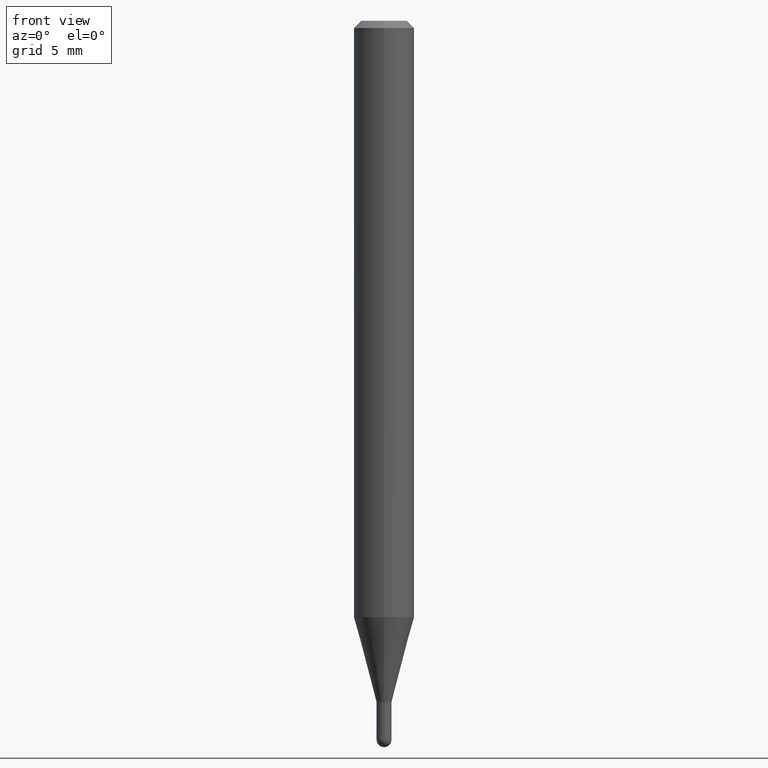
[diagram: clean part render]
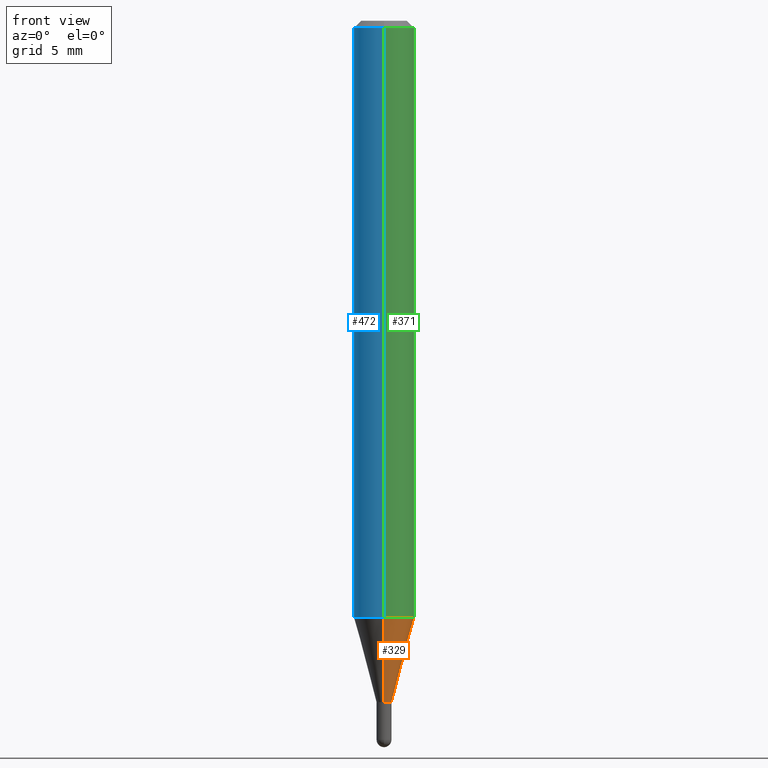
[diagram: same view with three faces highlighted in distinct colors, each labeled with its STEP entity id]
A machine part, front view with three faces highlighted in distinct colors.
Their STEP definitions:

[orange] entity #329 — the highlighted conical surface has half-angle 15 deg.
#16 = CIRCLE ( 'NONE', #436, 0.06250000000000000000 ) ;
#37 = LINE ( 'NONE', #120, #142 ) ;
#38 = CARTESIAN_POINT ( 'NONE',  ( 4.440892098500924943E-16, 0.06249999999999567707, -1.231593612044269426 ) ) ;
#68 = EDGE_CURVE ( 'NONE', #480, #490, #37, .T. ) ;
#94 = EDGE_CURVE ( 'NONE', #207, #268, #168, .T. ) ;
#120 = CARTESIAN_POINT ( 'NONE',  ( -1.082359215041040950E-16, -0.01550000000000511038, -1.407000000000000028 ) ) ;
#142 = VECTOR ( 'NONE', #465, 39.37007874015748854 ) ;
#168 = LINE ( 'NONE', #324, #392 ) ;
#175 = DIRECTION ( 'NONE',  ( -6.982962677686265922E-15, -1.000000000000000000, 4.370956789862821150E-15 ) ) ;
#180 = EDGE_CURVE ( 'NONE', #480, #207, #366, .T. ) ;
#207 = VERTEX_POINT ( 'NONE', #413 ) ;
#210 = DIRECTION ( 'NONE',  ( -2.445473868561533157E-29, 3.491474089232013110E-15, 1.000000000000000000 ) ) ;
#219 = DIRECTION ( 'NONE',  ( -2.445473868561533157E-29, 3.491474089232013110E-15, 1.000000000000000000 ) ) ;
#234 = CARTESIAN_POINT ( 'NONE',  ( -4.364351673553616434E-16, -0.06250000000000431599, -1.231593612044268982 ) ) ;
#247 = AXIS2_PLACEMENT_3D ( 'NONE', #253, #219, #451 ) ;
#251 = CARTESIAN_POINT ( 'NONE',  ( 3.011829994941570979E-29, -4.300077184916230038E-15, -1.231593612044269204 ) ) ;
#253 = CARTESIAN_POINT ( 'NONE',  ( 3.440781733066077319E-29, -4.912504043549441891E-15, -1.407000000000000028 ) ) ;
#268 = VERTEX_POINT ( 'NONE', #38 ) ;
#291 = EDGE_CURVE ( 'NONE', #490, #268, #16, .T. ) ;
#297 = DIRECTION ( 'NONE',  ( -2.445473868561533157E-29, 3.491474089232013110E-15, 1.000000000000000000 ) ) ;
#299 = ORIENTED_EDGE ( 'NONE', *, *, #68, .F. ) ;
#324 = CARTESIAN_POINT ( 'NONE',  ( 1.101341240428513349E-16, 0.01549999999999528491, -1.407000000000000028 ) ) ;
#329 = ADVANCED_FACE ( 'NONE', ( #335 ), #468, .T. ) ;
#333 = AXIS2_PLACEMENT_3D ( 'NONE', #473, #297, #475 ) ;
#335 = FACE_OUTER_BOUND ( 'NONE', #403, .T. ) ;
#346 = ORIENTED_EDGE ( 'NONE', *, *, #180, .T. ) ;
#366 = CIRCLE ( 'NONE', #247, 0.01550000000000019765 ) ;
#392 = VECTOR ( 'NONE', #463, 39.37007874015748143 ) ;
#396 = CARTESIAN_POINT ( 'NONE',  ( -1.082359215041040950E-16, -0.01550000000000511038, -1.407000000000000028 ) ) ;
#403 = EDGE_LOOP ( 'NONE', ( #346, #411, #482, #299 ) ) ;
#411 = ORIENTED_EDGE ( 'NONE', *, *, #94, .T. ) ;
#413 = CARTESIAN_POINT ( 'NONE',  ( 2.771116669464721549E-16, 0.01549999999999528491, -1.407000000000000028 ) ) ;
#436 = AXIS2_PLACEMENT_3D ( 'NONE', #251, #210, #175 ) ;
#451 = DIRECTION ( 'NONE',  ( -6.982962677686266711E-15, -1.000000000000000000, 0.000000000000000000 ) ) ;
#463 = DIRECTION ( 'NONE',  ( 1.839019923739649619E-15, 0.2588190451025318972, 0.9659258262890653146 ) ) ;
#465 = DIRECTION ( 'NONE',  ( -1.807323732225378654E-15, -0.2588190451025251249, 0.9659258262890670910 ) ) ;
#468 = CONICAL_SURFACE ( 'NONE', #333, 0.01550000000000019765, 0.2617993877991574569 ) ;
#473 = CARTESIAN_POINT ( 'NONE',  ( 3.440781733066077319E-29, -4.912504043549441891E-15, -1.407000000000000028 ) ) ;
#475 = DIRECTION ( 'NONE',  ( -6.982962677686266711E-15, -1.000000000000000000, 0.000000000000000000 ) ) ;
#480 = VERTEX_POINT ( 'NONE', #396 ) ;
#482 = ORIENTED_EDGE ( 'NONE', *, *, #291, .F. ) ;
#490 = VERTEX_POINT ( 'NONE', #234 ) ;

[blue] entity #472 — the highlighted cylindrical surface (edge-blend (fillet) strip) has radius 1.5875 mm, axis along (-0, 0, 1).
#15 = EDGE_CURVE ( 'NONE', #281, #214, #443, .T. ) ;
#24 = DIRECTION ( 'NONE',  ( -6.982962677686265922E-15, -1.000000000000000000, 3.491474089232012716E-15 ) ) ;
#38 = CARTESIAN_POINT ( 'NONE',  ( 4.440892098500924943E-16, 0.06249999999999567707, -1.231593612044269426 ) ) ;
#69 = FACE_OUTER_BOUND ( 'NONE', #276, .T. ) ;
#73 = DIRECTION ( 'NONE',  ( -2.445473868561533157E-29, 3.491474089232013110E-15, 1.000000000000000000 ) ) ;
#79 = VECTOR ( 'NONE', #501, 39.37007874015748143 ) ;
#85 = ORIENTED_EDGE ( 'NONE', *, *, #389, .F. ) ;
#89 = CARTESIAN_POINT ( 'NONE',  ( 4.440892098500928887E-16, 0.06249999999999995143, -0.01500000000000028394 ) ) ;
#99 = AXIS2_PLACEMENT_3D ( 'NONE', #326, #123, #160 ) ;
#123 = DIRECTION ( 'NONE',  ( -2.445473868561533157E-29, 3.491474089232013110E-15, 1.000000000000000000 ) ) ;
#143 = AXIS2_PLACEMENT_3D ( 'NONE', #381, #374, #179 ) ;
#144 = AXIS2_PLACEMENT_3D ( 'NONE', #154, #282, #24 ) ;
#149 = CARTESIAN_POINT ( 'NONE',  ( -4.364351673553912750E-16, -0.06250000000000005551, -0.01499999999999984852 ) ) ;
#153 = CARTESIAN_POINT ( 'NONE',  ( -4.364351673553916201E-16, -0.06250000000000000000, 2.182171305770007947E-16 ) ) ;
#154 = CARTESIAN_POINT ( 'NONE',  ( 0.000000000000000000, 0.000000000000000000, 0.000000000000000000 ) ) ;
#160 = DIRECTION ( 'NONE',  ( -6.982962677686265922E-15, -1.000000000000000000, 3.483106191921935554E-15 ) ) ;
#179 = DIRECTION ( 'NONE',  ( -6.982962677686265922E-15, -1.000000000000000000, 4.370956789862821150E-15 ) ) ;
#199 = CYLINDRICAL_SURFACE ( 'NONE', #144, 0.06250000000000000000 ) ;
#214 = VERTEX_POINT ( 'NONE', #149 ) ;
#234 = CARTESIAN_POINT ( 'NONE',  ( -4.364351673553616434E-16, -0.06250000000000431599, -1.231593612044268982 ) ) ;
#268 = VERTEX_POINT ( 'NONE', #38 ) ;
#271 = CARTESIAN_POINT ( 'NONE',  ( 4.440892098500625669E-16, 0.06250000000000000000, -2.182171305770007947E-16 ) ) ;
#276 = EDGE_LOOP ( 'NONE', ( #85, #476, #410, #294 ) ) ;
#281 = VERTEX_POINT ( 'NONE', #89 ) ;
#282 = DIRECTION ( 'NONE',  ( -2.445473868561533157E-29, 3.491474089232013110E-15, 1.000000000000000000 ) ) ;
#294 = ORIENTED_EDGE ( 'NONE', *, *, #15, .F. ) ;
#304 = EDGE_CURVE ( 'NONE', #268, #490, #461, .T. ) ;
#326 = CARTESIAN_POINT ( 'NONE',  ( 3.668210802842315763E-31, -5.237211133848042937E-17, -0.01500000000000006710 ) ) ;
#354 = LINE ( 'NONE', #271, #79 ) ;
#374 = DIRECTION ( 'NONE',  ( -2.445473868561533157E-29, 3.491474089232013110E-15, 1.000000000000000000 ) ) ;
#381 = CARTESIAN_POINT ( 'NONE',  ( 3.011829994941570979E-29, -4.300077184916230038E-15, -1.231593612044269204 ) ) ;
#382 = VECTOR ( 'NONE', #73, 39.37007874015748143 ) ;
#389 = EDGE_CURVE ( 'NONE', #268, #281, #354, .T. ) ;
#393 = EDGE_CURVE ( 'NONE', #490, #214, #494, .T. ) ;
#410 = ORIENTED_EDGE ( 'NONE', *, *, #393, .T. ) ;
#443 = CIRCLE ( 'NONE', #99, 0.06250000000000000000 ) ;
#461 = CIRCLE ( 'NONE', #143, 0.06250000000000000000 ) ;
#472 = ADVANCED_FACE ( 'NONE', ( #69 ), #199, .T. ) ;
#476 = ORIENTED_EDGE ( 'NONE', *, *, #304, .T. ) ;
#490 = VERTEX_POINT ( 'NONE', #234 ) ;
#494 = LINE ( 'NONE', #153, #382 ) ;
#501 = DIRECTION ( 'NONE',  ( -2.445473868561533157E-29, 3.491474089232013110E-15, 1.000000000000000000 ) ) ;

[green] entity #371 — the highlighted cylindrical surface (edge-blend (fillet) strip) has radius 1.5875 mm, axis along (-0, 0, 1).
#16 = CIRCLE ( 'NONE', #436, 0.06250000000000000000 ) ;
#26 = FACE_OUTER_BOUND ( 'NONE', #147, .T. ) ;
#38 = CARTESIAN_POINT ( 'NONE',  ( 4.440892098500924943E-16, 0.06249999999999567707, -1.231593612044269426 ) ) ;
#57 = ORIENTED_EDGE ( 'NONE', *, *, #393, .F. ) ;
#73 = DIRECTION ( 'NONE',  ( -2.445473868561533157E-29, 3.491474089232013110E-15, 1.000000000000000000 ) ) ;
#79 = VECTOR ( 'NONE', #501, 39.37007874015748143 ) ;
#89 = CARTESIAN_POINT ( 'NONE',  ( 4.440892098500928887E-16, 0.06249999999999995143, -0.01500000000000028394 ) ) ;
#125 = DIRECTION ( 'NONE',  ( -6.982962677686265922E-15, -1.000000000000000000, 3.491474089232012716E-15 ) ) ;
#130 = AXIS2_PLACEMENT_3D ( 'NONE', #422, #500, #320 ) ;
#147 = EDGE_LOOP ( 'NONE', ( #321, #300, #336, #57 ) ) ;
#149 = CARTESIAN_POINT ( 'NONE',  ( -4.364351673553912750E-16, -0.06250000000000005551, -0.01499999999999984852 ) ) ;
#153 = CARTESIAN_POINT ( 'NONE',  ( -4.364351673553916201E-16, -0.06250000000000000000, 2.182171305770007947E-16 ) ) ;
#175 = DIRECTION ( 'NONE',  ( -6.982962677686265922E-15, -1.000000000000000000, 4.370956789862821150E-15 ) ) ;
#210 = DIRECTION ( 'NONE',  ( -2.445473868561533157E-29, 3.491474089232013110E-15, 1.000000000000000000 ) ) ;
#214 = VERTEX_POINT ( 'NONE', #149 ) ;
#229 = CARTESIAN_POINT ( 'NONE',  ( 0.000000000000000000, 0.000000000000000000, 0.000000000000000000 ) ) ;
#234 = CARTESIAN_POINT ( 'NONE',  ( -4.364351673553616434E-16, -0.06250000000000431599, -1.231593612044268982 ) ) ;
#237 = DIRECTION ( 'NONE',  ( -2.445473868561533157E-29, 3.491474089232013110E-15, 1.000000000000000000 ) ) ;
#251 = CARTESIAN_POINT ( 'NONE',  ( 3.011829994941570979E-29, -4.300077184916230038E-15, -1.231593612044269204 ) ) ;
#268 = VERTEX_POINT ( 'NONE', #38 ) ;
#271 = CARTESIAN_POINT ( 'NONE',  ( 4.440892098500625669E-16, 0.06250000000000000000, -2.182171305770007947E-16 ) ) ;
#281 = VERTEX_POINT ( 'NONE', #89 ) ;
#291 = EDGE_CURVE ( 'NONE', #490, #268, #16, .T. ) ;
#300 = ORIENTED_EDGE ( 'NONE', *, *, #389, .T. ) ;
#320 = DIRECTION ( 'NONE',  ( -6.982962677686265922E-15, -1.000000000000000000, 3.483106191921935554E-15 ) ) ;
#321 = ORIENTED_EDGE ( 'NONE', *, *, #291, .T. ) ;
#336 = ORIENTED_EDGE ( 'NONE', *, *, #466, .F. ) ;
#354 = LINE ( 'NONE', #271, #79 ) ;
#371 = ADVANCED_FACE ( 'NONE', ( #26 ), #437, .T. ) ;
#382 = VECTOR ( 'NONE', #73, 39.37007874015748143 ) ;
#387 = CIRCLE ( 'NONE', #130, 0.06250000000000000000 ) ;
#389 = EDGE_CURVE ( 'NONE', #268, #281, #354, .T. ) ;
#393 = EDGE_CURVE ( 'NONE', #490, #214, #494, .T. ) ;
#422 = CARTESIAN_POINT ( 'NONE',  ( 3.668210802842315763E-31, -5.237211133848042937E-17, -0.01500000000000006710 ) ) ;
#436 = AXIS2_PLACEMENT_3D ( 'NONE', #251, #210, #175 ) ;
#437 = CYLINDRICAL_SURFACE ( 'NONE', #505, 0.06250000000000000000 ) ;
#466 = EDGE_CURVE ( 'NONE', #214, #281, #387, .T. ) ;
#490 = VERTEX_POINT ( 'NONE', #234 ) ;
#494 = LINE ( 'NONE', #153, #382 ) ;
#500 = DIRECTION ( 'NONE',  ( -2.445473868561533157E-29, 3.491474089232013110E-15, 1.000000000000000000 ) ) ;
#501 = DIRECTION ( 'NONE',  ( -2.445473868561533157E-29, 3.491474089232013110E-15, 1.000000000000000000 ) ) ;
#505 = AXIS2_PLACEMENT_3D ( 'NONE', #229, #237, #125 ) ;